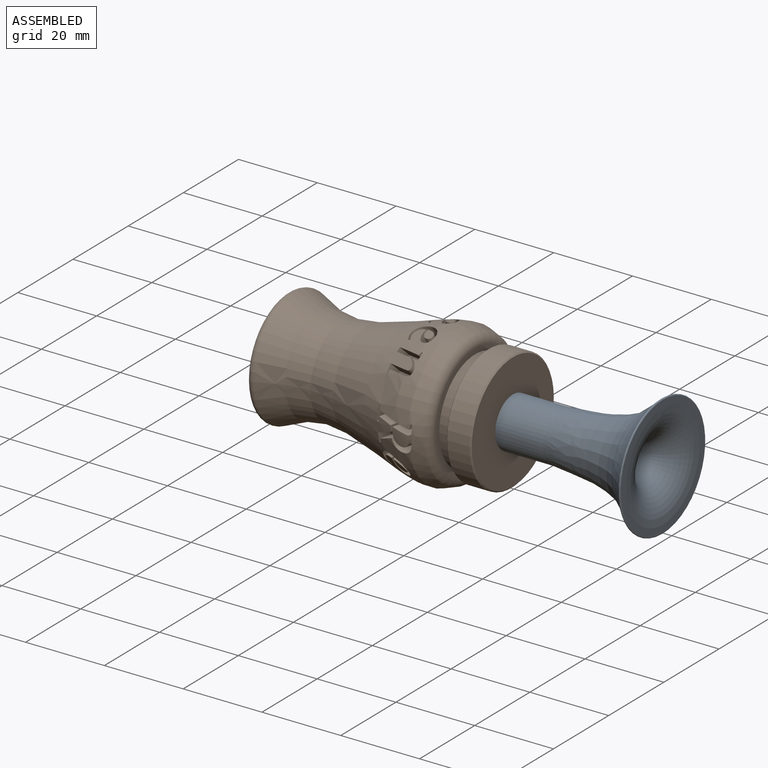
[diagram: assembled view]
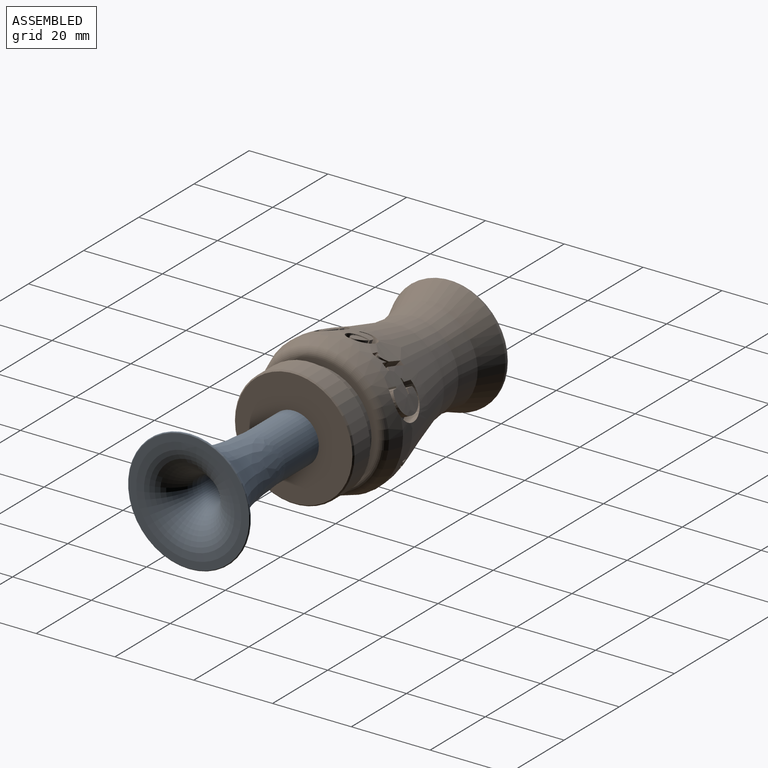
[diagram: assembled view, second angle]
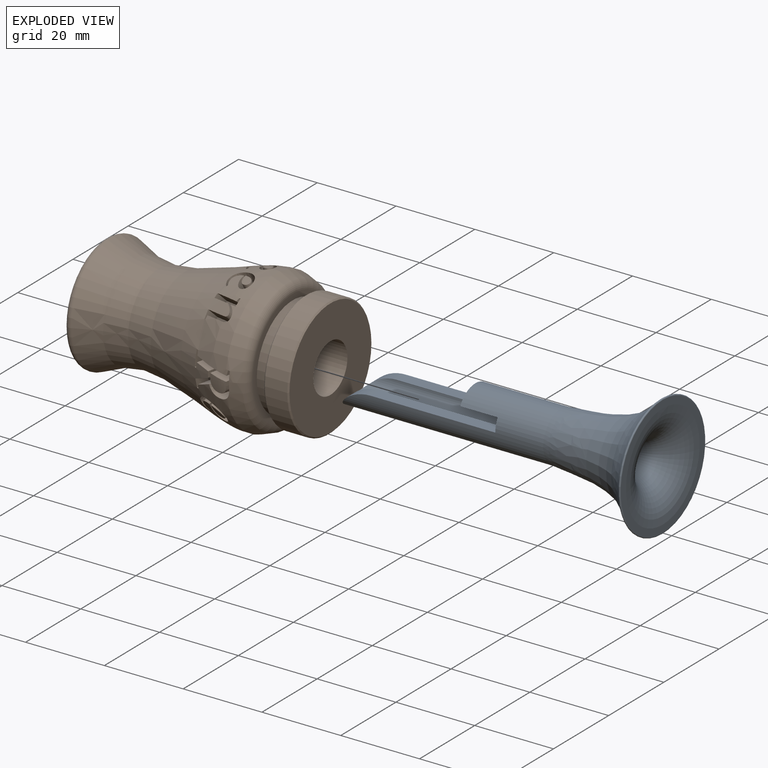
[diagram: exploded view]
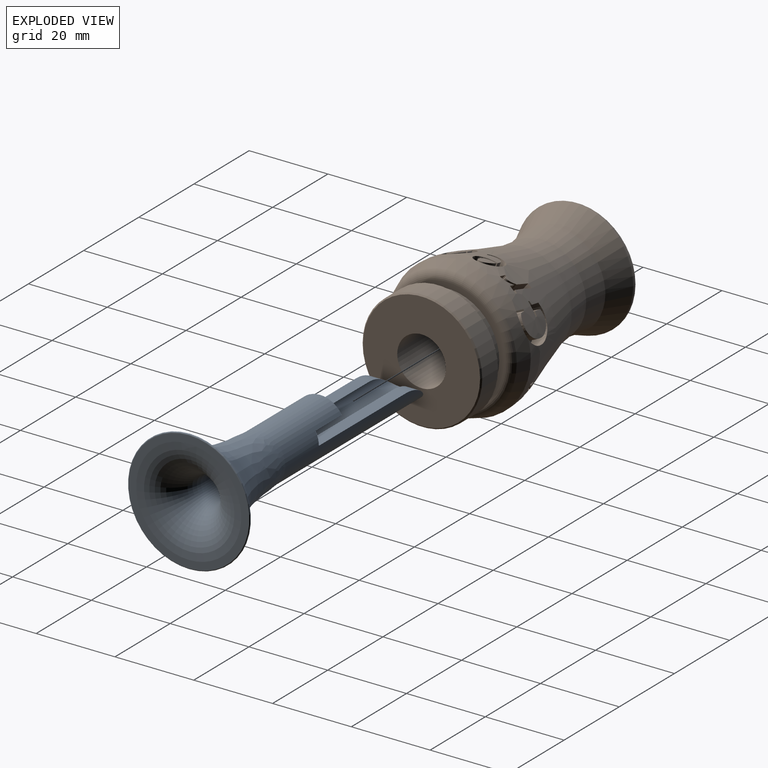
[diagram: exploded view, second angle]
ASSEMBLY  parts=2 mates=4
PART A: 15 faces, bbox 79.2x44.5x44.5 mm
  f0: cylinder r=6.35mm len=53.24mm, axis (1,0,0), area 1395.2mm2, adj f1,f6,f7,f8,f9,f10,f11,f12
  f1: plane 31.63x3.18mm, normal (0,0,1), area 100.4mm2, adj f0,f2,f6,f11
  f2: cylinder r=3.17mm len=66.95mm, axis (1,0,0), area 930.4mm2, adj f1,f3,f6,f9,f10,f11
  f3: torus R=13.33mm, axis (-1,0,0), area 688.6mm2, adj f2,f4
  f4: plane 30.53x30.53mm, normal (1,0,0), area 173.2mm2, adj f3,f5
  f5: torus R=15.26mm, axis (-1,0,0), area 58.8mm2, adj f4
  f6: plane 6.35x3.18mm, normal (-1,0,0), area 11.4mm2, adj f0,f1,f2,f8
  f7: plane 11x3.18mm, normal (-1,0,0), area 24.8mm2, adj f0,f8
  f8: plane 11x9.53mm, normal (0,0,-1), area 104.8mm2, adj f0,f6,f7,f9
  f9: plane 6.35x3.18mm, normal (-1,0,0), area 11.4mm2, adj f0,f2,f8,f10
  f10: plane 31.63x3.18mm, normal (0,0,1), area 100.4mm2, adj f0,f2,f9,f11
  f11: cylinder r=10.16mm len=12.7mm, axis (0,-1,0), area 84.9mm2, adj f0,f1,f2,f10,f12
  f12: plane 4.86x0.48mm, normal (-0.91,0,0.42), area 1.7mm2, adj f0,f11
  f13: torus R=16.51mm, axis (-1,0,0), area 56.6mm2, adj f0
  f14: revolved ~30.87x30.87mm, area 3083.4mm2
PART B: 284 faces, bbox 57.4x37.2x37.2 mm
  f0: torus R=12.64mm, axis (-1,0,0), area 39.2mm2, adj f7,f280
  f1: revolved ~44.59x35.67mm, area 3846.9mm2, adj f5,f12,f13,f14,f15,f16,f17,f18
  f2: cylinder r=6.17mm len=50.8mm, axis (-1,0,0), area 1970.9mm2, adj f4,f6
  f3: plane 27.27x27.27mm, normal (-1,0,0), area 90.6mm2, adj f4,f5
  f4: bspline ~25.05x25.05mm, area 540.3mm2, adj f2,f3
  f5: torus R=13.63mm, axis (-1,0,0), area 235.9mm2, adj f1,f3
  f6: plane 29.73x29.73mm, normal (1,0,0), area 574.4mm2, adj f2,f9
  f7: plane 29.73x29.73mm, normal (-1,0,0), area 192.1mm2, adj f0,f10
  f8: cylinder r=15.18mm len=30.36mm, axis (-1,0,0), area 545.2mm2, adj f9,f10
  f9: cone r=14.86mm half-angle=45deg, axis (-1,0,0), area 42.4mm2, adj f6,f8
  f10: cone r=15.18mm half-angle=45deg, axis (1,0,0), area 42.4mm2, adj f7,f8
  f11: bspline ~15.71x13mm, area 30.4mm2, adj f12,f13,f14,f15,f16,f17,f18,f19
  f12: extruded ~3.48x2.83mm, area 5.9mm2, adj f1,f11,f13,f35
  f13: extruded ~3.68x3.11mm, area 6.7mm2, adj f1,f11,f12,f14
  f14: plane 4.02x3.46mm, normal (0.17,-0.9,-0.39), area 10.2mm2, adj f1,f11,f13,f15
  f15: plane 3.52x1.97mm, normal (0.94,-0.08,-0.33), area 3.3mm2, adj f1,f11,f14,f16
  f16: plane 3.03x1.36mm, normal (0.16,-0.91,-0.39), area 1.3mm2, adj f1,f11,f15,f17
  f17: plane 4.9x4.34mm, normal (-0.96,-0.1,0.27), area 11.8mm2, adj f1,f11,f16,f18
  f18: plane 2.92x1.32mm, normal (-0.16,0.91,0.39), area 1.3mm2, adj f1,f11,f17,f19
  f19: plane 3.47x2.17mm, normal (0.95,0.25,-0.21), area 4mm2, adj f1,f11,f18,f20
  f20: plane 3.5x3.34mm, normal (-0.17,0.9,0.39), area 8.4mm2, adj f1,f11,f19,f21
  f21: extruded ~3.21x2.2mm, area 3.9mm2, adj f1,f11,f20,f22
  f22: extruded ~3.26x2.32mm, area 4.2mm2, adj f1,f11,f21,f23
  f23: extruded ~4.04x3.03mm, area 7.5mm2, adj f1,f11,f22,f24
  f24: extruded ~4.01x3.28mm, area 8.3mm2, adj f1,f11,f23,f25
  f25: extruded ~3.86x3.72mm, area 10mm2, adj f1,f11,f24,f26
  f26: extruded ~3.44x3mm, area 8.8mm2, adj f1,f11,f25,f27
  f27: extruded ~4.26x3.63mm, area 9mm2, adj f1,f11,f26,f28
  f28: extruded ~4.47x3.52mm, area 9.7mm2, adj f1,f11,f27,f29
  f29: plane 3.22x2.32mm, normal (-0.02,0.93,0.36), area 4.2mm2, adj f1,f11,f28,f30
  f30: plane 3.31x1.55mm, normal (0.96,0.1,-0.27), area 1.7mm2, adj f1,f11,f29,f31
  f31: plane 4.15x3.59mm, normal (0.17,-0.9,-0.39), area 7.8mm2, adj f1,f11,f30,f32
  f32: extruded ~5.38x4.57mm, area 14mm2, adj f1,f11,f31,f33
  f33: extruded ~4.94x4.58mm, area 13.2mm2, adj f1,f11,f32,f34
  f34: extruded ~3.73x3.56mm, area 10.9mm2, adj f1,f11,f33,f36
  f35: extruded ~4.69x4.05mm, area 10.9mm2, adj f1,f11,f12,f37
  f36: extruded ~4.12x3.78mm, area 11.2mm2, adj f1,f11,f34,f37
  f37: extruded ~4.5x3.86mm, area 10.6mm2, adj f1,f11,f35,f36
  f38: bspline ~13x12.18mm, area 16.6mm2, adj f39,f40,f41,f42,f43,f44,f45,f46
  f39: extruded ~2.71x2.36mm, area 5mm2, adj f38,f40,f57,f63
  f40: extruded ~2.82x2.6mm, area 4.5mm2, adj f38,f39,f41,f63
  f41: extruded ~3.08x2.62mm, area 3.6mm2, adj f38,f40,f42,f63
  f42: extruded ~3.01x2.19mm, area 2.3mm2, adj f38,f41,f58,f63
  f43: extruded ~3.23x2.05mm, area 4.1mm2, adj f1,f38,f44,f60
  f44: extruded ~3.54x2.88mm, area 5mm2, adj f1,f38,f43,f45
  f45: extruded ~3.56x3.46mm, area 6.7mm2, adj f1,f38,f44,f46
  f46: extruded ~3.18x2.99mm, area 7.3mm2, adj f1,f38,f45,f47
  f47: extruded ~3.13x2.89mm, area 7.6mm2, adj f1,f38,f46,f48
  f48: extruded ~3.52x2.8mm, area 6.7mm2, adj f1,f38,f47,f49
  f49: extruded ~3.88x3.2mm, area 6.4mm2, adj f1,f38,f48,f50
  f50: extruded ~3.25x2.91mm, area 4.7mm2, adj f1,f38,f49,f51
  f51: extruded ~3.23x3.08mm, area 5.4mm2, adj f1,f38,f50,f52
  f52: plane 2.78x1.79mm, normal (-0.55,-0.31,0.78), area 1.2mm2, adj f1,f38,f51,f53
  f53: extruded ~3.08x2.68mm, area 3.7mm2, adj f1,f38,f52,f54
  f54: extruded ~3.18x2.73mm, area 4mm2, adj f1,f38,f53,f55
  f55: extruded ~3.36x2.6mm, area 4.1mm2, adj f1,f38,f54,f56
  f56: extruded ~3.17x2.29mm, area 4.8mm2, adj f1,f38,f55,f61
  f57: extruded ~3.75x3.7mm, area 7.8mm2, adj f38,f39,f59,f63
  f58: extruded ~2.92x1.82mm, area 2.3mm2, adj f38,f42,f59,f63
  f59: extruded ~2.92x2.73mm, area 5.5mm2, adj f38,f57,f58,f63
  f60: extruded ~3.17x3.15mm, area 7.1mm2, adj f1,f38,f43,f62
  f61: plane 2.67x1.78mm, normal (0.05,-0.56,0.83), area 1.7mm2, adj f1,f38,f56,f62
  f62: extruded ~4.58x4.17mm, area 11mm2, adj f1,f38,f60,f61
  f63: revolved ~3.03x2.95mm, area 5.6mm2, adj f39,f40,f41,f42,f57,f58,f59
  f64: bspline ~13x12.18mm, area 12mm2, adj f65,f66,f67,f68,f69,f70,f71,f72
  f65: extruded ~3.63x2.81mm, area 4.7mm2, adj f1,f64,f66,f77
  f66: extruded ~3.73x2.55mm, area 5.7mm2, adj f1,f64,f65,f67
  f67: plane 2.97x2.53mm, normal (0.14,-0.86,0.48), area 5.1mm2, adj f1,f64,f66,f68
  f68: plane 3.9x3.29mm, normal (-0.96,0.15,0.25), area 6.6mm2, adj f1,f64,f67,f69
  f69: plane 2.74x1.67mm, normal (-0.17,0.87,-0.47), area 1.1mm2, adj f1,f64,f68,f70
  f70: plane 3.18x2.33mm, normal (0.94,0.03,-0.35), area 2.9mm2, adj f1,f64,f69,f71
  f71: plane 7.23x4.77mm, normal (-0.17,0.87,-0.47), area 20.8mm2, adj f1,f64,f70,f72
  f72: plane 3.41x2.57mm, normal (0.96,-0.15,-0.25), area 3.9mm2, adj f1,f64,f71,f73
  f73: plane 5.43x4.22mm, normal (0.16,-0.87,0.47), area 14.6mm2, adj f1,f64,f72,f74
  f74: extruded ~3.58x2.45mm, area 5.3mm2, adj f1,f64,f73,f75
  f75: extruded ~3.48x2.65mm, area 4.2mm2, adj f1,f64,f74,f76
  f76: plane 2.65x1.96mm, normal (0.27,0.77,-0.57), area 3.1mm2, adj f1,f64,f75,f78
  f77: extruded ~3.02x2.18mm, area 1.9mm2, adj f1,f64,f65,f79
  f78: plane 2.76x1.9mm, normal (0.96,-0.15,-0.25), area 1mm2, adj f1,f64,f76,f79
  f79: plane 3.05x2.81mm, normal (0.17,-0.87,0.47), area 6mm2, adj f1,f64,f77,f78
  f80: bspline ~13x12.18mm, area 16.6mm2, adj f81,f82,f83,f84,f85,f86,f87,f88
  f81: extruded ~2.68x2.39mm, area 5mm2, adj f80,f82,f99,f105
  f82: extruded ~2.81x2.64mm, area 4.5mm2, adj f80,f81,f83,f105
  f83: extruded ~3.07x2.65mm, area 3.6mm2, adj f80,f82,f84,f105
  f84: extruded ~2.99x2.22mm, area 2.3mm2, adj f80,f83,f100,f105
  f85: extruded ~3.22x2.08mm, area 4.1mm2, adj f1,f80,f86,f102
  f86: extruded ~3.53x2.9mm, area 5mm2, adj f1,f80,f85,f87
  f87: extruded ~3.56x3.48mm, area 6.7mm2, adj f1,f80,f86,f88
  f88: extruded ~3.21x2.98mm, area 7.3mm2, adj f1,f80,f87,f89
  f89: extruded ~3.13x2.86mm, area 7.6mm2, adj f1,f80,f88,f90
  f90: extruded ~3.5x2.8mm, area 6.7mm2, adj f1,f80,f89,f91
  f91: extruded ~3.88x3.22mm, area 6.4mm2, adj f1,f80,f90,f92
  f92: extruded ~3.25x2.93mm, area 4.7mm2, adj f1,f80,f91,f93
  f93: extruded ~3.23x3.11mm, area 5.4mm2, adj f1,f80,f92,f94
  f94: plane 2.76x1.83mm, normal (-0.55,0.77,0.32), area 1.2mm2, adj f1,f80,f93,f95
  f95: extruded ~3.07x2.7mm, area 3.7mm2, adj f1,f80,f94,f96
  f96: extruded ~3.17x2.76mm, area 4mm2, adj f1,f80,f95,f97
  f97: extruded ~3.35x2.63mm, area 4.1mm2, adj f1,f80,f96,f98
  f98: extruded ~3.15x2.29mm, area 4.8mm2, adj f1,f80,f97,f103
  f99: extruded ~3.77x3.71mm, area 7.8mm2, adj f80,f81,f101,f105
  f100: extruded ~2.9x1.86mm, area 2.3mm2, adj f80,f84,f101,f105
  f101: extruded ~2.91x2.76mm, area 5.5mm2, adj f80,f99,f100,f105
  f102: extruded ~3.19x3.16mm, area 7.1mm2, adj f1,f80,f85,f104
  f103: plane 2.64x1.82mm, normal (0.05,0.82,0.57), area 1.7mm2, adj f1,f80,f98,f104
  f104: extruded ~4.59x4.18mm, area 11mm2, adj f1,f80,f102,f103
  f105: revolved ~3.01x2.95mm, area 5.6mm2, adj f81,f82,f83,f84,f99,f100,f101
  f106: bspline ~10.22x10mm, area 36.7mm2, adj f107,f108,f109,f110,f111,f112,f113,f114
  f107: plane 3.08x1.31mm, normal (-0.96,0.02,-0.29), area 3.7mm2, adj f106,f108,f126,f132
  f108: plane 5.59x3.8mm, normal (0.17,0.98,0.1), area 14.1mm2, adj f106,f107,f109,f132
  f109: plane 3.54x1.28mm, normal (0.96,-0.02,0.29), area 4mm2, adj f106,f108,f127,f132
  f110: plane 3.09x1.71mm, normal (0.96,-0.02,0.29), area 4.9mm2, adj f1,f106,f111,f129
  f111: plane 5.23x4.53mm, normal (0.37,-0.93,0.06), area 14.9mm2, adj f1,f106,f110,f112
  f112: plane 3.65x2.43mm, normal (0.96,-0.02,0.29), area 7.3mm2, adj f1,f106,f111,f113
  f113: plane 3.24x1.33mm, normal (0.18,0.98,0.1), area 1.3mm2, adj f1,f106,f112,f114
  f114: plane 3.48x1.23mm, normal (-0.94,0.19,-0.28), area 3.6mm2, adj f1,f106,f113,f115
  f115: plane 4.82x4.54mm, normal (-0.37,0.93,-0.07), area 13.7mm2, adj f1,f106,f114,f116
  f116: extruded ~4.69x4.01mm, area 14mm2, adj f1,f106,f115,f117
  f117: extruded ~4.55x2.91mm, area 7.3mm2, adj f1,f106,f116,f118
  f118: extruded ~4.25x2.64mm, area 10.2mm2, adj f1,f106,f117,f119
  f119: plane 4.46x4.26mm, normal (-0.96,0.02,-0.29), area 16.3mm2, adj f1,f106,f118,f120
  f120: plane 4.19x1.68mm, normal (-0.18,-0.98,-0.11), area 1.7mm2, adj f1,f106,f119,f121
  f121: plane 4.02x1.46mm, normal (0.95,-0.17,0.28), area 4.8mm2, adj f1,f106,f120,f122
  f122: plane 9.63x4.83mm, normal (-0.17,-0.98,-0.1), area 29.1mm2, adj f1,f106,f121,f123
  f123: plane 3.51x1.38mm, normal (-0.94,-0.15,-0.29), area 4mm2, adj f1,f106,f122,f124
  f124: plane 3.35x1.34mm, normal (-0.18,-0.98,-0.1), area 1.3mm2, adj f1,f106,f123,f125
  f125: plane 4.21x3.8mm, normal (0.96,-0.02,0.29), area 12.7mm2, adj f1,f106,f124,f130
  f126: extruded ~3.3x2.23mm, area 7mm2, adj f106,f107,f128,f132
  f127: extruded ~4.44x2.85mm, area 10.9mm2, adj f106,f109,f128,f132
  f128: extruded ~4x2.79mm, area 6.5mm2, adj f106,f126,f127,f132
  f129: plane 4.62x4.19mm, normal (0.17,0.98,0.1), area 12.1mm2, adj f1,f106,f110,f131
  f130: plane 3.16x1.3mm, normal (0.18,0.98,0.11), area 1.3mm2, adj f1,f106,f125,f131
  f131: plane 3.09x1.49mm, normal (-0.95,0.16,-0.28), area 4.2mm2, adj f1,f106,f129,f130
  f132: revolved ~4.27x3.96mm, area 13.3mm2, adj f107,f108,f109,f126,f127,f128
  f133: bspline ~15.07x13.03mm, area 26.5mm2, adj f134,f135,f136,f137,f138,f139,f140,f141
  f134: plane 5.3x4.35mm, normal (0.17,-0.1,0.98), area 14.2mm2, adj f133,f135,f157,f163
  f135: extruded ~3.27x1.64mm, area 3.8mm2, adj f133,f134,f136,f163
  f136: extruded ~3.16x1.22mm, area 3.1mm2, adj f133,f135,f137,f163
  f137: extruded ~3.25x1.37mm, area 3.3mm2, adj f133,f136,f138,f163
  f138: extruded ~3.54x2.17mm, area 4.3mm2, adj f133,f137,f139,f163
  f139: extruded ~3.74x2.85mm, area 6.4mm2, adj f133,f138,f158,f163
  f140: extruded ~3.19x1.06mm, area 1.8mm2, adj f1,f133,f141,f160
  f141: extruded ~3.16x0.99mm, area 2.2mm2, adj f1,f133,f140,f142
  f142: extruded ~3.14x2.2mm, area 6.9mm2, adj f1,f133,f141,f143
  f143: extruded ~3.68x2.65mm, area 7.4mm2, adj f1,f133,f142,f144
  f144: extruded ~3.97x3.3mm, area 8mm2, adj f1,f133,f143,f145
  f145: extruded ~3.78x2.7mm, area 6.2mm2, adj f1,f133,f144,f146
  f146: extruded ~3.41x1.58mm, area 5.3mm2, adj f1,f133,f145,f147
  f147: extruded ~3.57x2.48mm, area 8.8mm2, adj f1,f133,f146,f148
  f148: plane 3.25x2.07mm, normal (0.12,-0.08,0.99), area 3.6mm2, adj f1,f133,f147,f149
  f149: plane 3.3x2.12mm, normal (-0.96,0.29,0.01), area 6.3mm2, adj f1,f133,f148,f150
  f150: plane 3.19x1.29mm, normal (-0.17,0.1,-0.98), area 1.1mm2, adj f1,f133,f149,f151
  f151: plane 3.2x1.18mm, normal (0.93,-0.27,-0.25), area 2.5mm2, adj f1,f133,f150,f152
  f152: plane 9.91x6.01mm, normal (-0.17,0.1,-0.98), area 29.9mm2, adj f1,f133,f151,f153
  f153: plane 3.48x1.06mm, normal (-0.94,0.29,-0.18), area 3mm2, adj f1,f133,f152,f154
  f154: plane 3.35x1.3mm, normal (-0.16,0.09,-0.98), area 1.2mm2, adj f1,f133,f153,f155
  f155: plane 3.8x3.52mm, normal (0.96,-0.29,-0.01), area 10.7mm2, adj f1,f133,f154,f156
  f156: plane 3.16x1.26mm, normal (0.16,-0.09,0.98), area 1.1mm2, adj f1,f133,f155,f161
  f157: extruded ~3.33x1.37mm, area 4.2mm2, adj f133,f134,f159,f163
  f158: extruded ~3.51x2.39mm, area 5.7mm2, adj f133,f139,f159,f163
  f159: extruded ~3.15x1.47mm, area 4.6mm2, adj f133,f157,f158,f163
  f160: plane 3.28x1.56mm, normal (0.12,-0.08,0.99), area 2.1mm2, adj f1,f133,f140,f162
  f161: plane 3.14x1.33mm, normal (-0.95,0.28,0.16), area 3.8mm2, adj f1,f133,f156,f162
  f162: plane 3.76x2.88mm, normal (0.16,-0.1,0.98), area 6.7mm2, adj f1,f133,f160,f161
  f163: revolved ~5.57x4.05mm, area 15.6mm2, adj f134,f135,f136,f137,f138,f139,f157,f158
  f164: bspline ~13x12.18mm, area 20.6mm2, adj f165,f166,f167,f168,f169,f170,f171,f172
  f165: plane 5.39x4.05mm, normal (-0.17,-0.43,-0.89), area 14.2mm2, adj f164,f166,f182,f188
  f166: extruded ~3.8x2.91mm, area 6.8mm2, adj f164,f165,f167,f188
  f167: extruded ~3.05x2.35mm, area 3.3mm2, adj f164,f166,f168,f188
  f168: extruded ~2.91x2.15mm, area 4.2mm2, adj f164,f167,f169,f188
  f169: extruded ~3.4x2.82mm, area 6.4mm2, adj f164,f168,f170,f188
  f170: extruded ~3.6x2.38mm, area 5.8mm2, adj f164,f169,f183,f188
  f171: plane 7.38x4.41mm, normal (0.17,0.43,0.89), area 21.3mm2, adj f1,f164,f172,f185
  f172: plane 2.89x1.9mm, normal (-0.96,0.25,-0.14), area 1.3mm2, adj f1,f164,f171,f173
  f173: plane 2.88x1.82mm, normal (-0.76,-0.09,-0.64), area 1.4mm2, adj f1,f164,f172,f174
  f174: extruded ~3.53x3.06mm, area 5.6mm2, adj f1,f164,f173,f175
  f175: extruded ~3.92x3.23mm, area 7mm2, adj f1,f164,f174,f176
  f176: extruded ~3.89x2.62mm, area 7.5mm2, adj f1,f164,f175,f177
  f177: extruded ~3.61x3.25mm, area 8.1mm2, adj f1,f164,f176,f178
  f178: extruded ~3.05x2.7mm, area 6.2mm2, adj f1,f164,f177,f179
  f179: extruded ~3.39x2.93mm, area 5.2mm2, adj f1,f164,f178,f180
  f180: extruded ~4.14x3.3mm, area 8.5mm2, adj f1,f164,f179,f181
  f181: plane 3.05x2.03mm, normal (-0.18,-0.43,-0.89), area 3.7mm2, adj f1,f164,f180,f186
  f182: extruded ~2.89x2mm, area 1.9mm2, adj f164,f165,f184,f188
  f183: extruded ~3.54x2.62mm, area 4.8mm2, adj f164,f170,f184,f188
  f184: extruded ~2.99x2.05mm, area 2mm2, adj f164,f182,f183,f188
  f185: plane 2.95x2.3mm, normal (-0.93,0.35,0.05), area 2.7mm2, adj f1,f164,f171,f187
  f186: plane 3.54x3.45mm, normal (0.96,-0.25,0.14), area 6.7mm2, adj f1,f164,f181,f187
  f187: plane 2.81x1.5mm, normal (0.17,0.43,0.89), area 1.1mm2, adj f1,f164,f185,f186
  f188: revolved ~5.58x3.93mm, area 15.1mm2, adj f165,f166,f167,f168,f169,f170,f182,f183
  f189: bspline ~12.18x10.89mm, area 16.6mm2, adj f190,f191,f192,f193,f194,f195,f196,f197
  f190: extruded ~3.31x2.36mm, area 5mm2, adj f189,f191,f208,f214
  f191: extruded ~3.16x2.03mm, area 4.5mm2, adj f189,f190,f192,f214
  f192: extruded ~3.18x1.79mm, area 3.6mm2, adj f189,f191,f193,f214
  f193: extruded ~3.23x1.39mm, area 2.3mm2, adj f189,f192,f209,f214
  f194: extruded ~3.53x2.01mm, area 4.1mm2, adj f1,f189,f195,f211
  f195: extruded ~3.54x2.17mm, area 5mm2, adj f1,f189,f194,f196
  f196: extruded ~3.39x2.71mm, area 6.7mm2, adj f1,f189,f195,f197
  f197: extruded ~3.16x2.59mm, area 7.3mm2, adj f1,f189,f196,f198
  f198: extruded ~3.53x3.13mm, area 7.6mm2, adj f1,f189,f197,f199
  f199: extruded ~3.82x2.8mm, area 6.7mm2, adj f1,f189,f198,f200
  f200: extruded ~3.79x2.54mm, area 6.4mm2, adj f1,f189,f199,f201
  f201: extruded ~3.22x2.17mm, area 4.7mm2, adj f1,f189,f200,f202
  f202: extruded ~3.2x2.25mm, area 5.4mm2, adj f1,f189,f201,f203
  f203: plane 3.13x1.22mm, normal (-0.55,0.05,-0.84), area 1.2mm2, adj f1,f189,f202,f204
  f204: extruded ~3.17x1.84mm, area 3.7mm2, adj f1,f189,f203,f205
  f205: extruded ~3.21x1.97mm, area 4mm2, adj f1,f189,f204,f206
  f206: extruded ~3.44x1.88mm, area 4.1mm2, adj f1,f189,f205,f207
  f207: extruded ~3.52x2.29mm, area 4.8mm2, adj f1,f189,f206,f212
  f208: extruded ~3.4x3.08mm, area 7.8mm2, adj f189,f190,f210,f214
  f209: extruded ~3.3x1.6mm, area 2.3mm2, adj f189,f193,f210,f214
  f210: extruded ~3.32x2.32mm, area 5.5mm2, adj f189,f208,f209,f214
  f211: extruded ~3.47x2.66mm, area 7.1mm2, adj f1,f189,f194,f213
  f212: plane 3.09x1.45mm, normal (0.05,0.27,-0.96), area 1.7mm2, adj f1,f189,f207,f213
  f213: extruded ~4.03x3.56mm, area 11mm2, adj f1,f189,f211,f212
  f214: revolved ~3.26x2.95mm, area 5.6mm2, adj f190,f191,f192,f193,f208,f209,f210
  f215: bspline ~12.18x9.6mm, area 19.9mm2, adj f216,f217,f218,f219,f220,f221,f222,f223
  f216: extruded ~2.54x2.48mm, area 3.9mm2, adj f1,f215,f217,f235
  f217: plane 5.2x3.44mm, normal (-0.17,-0.69,0.7), area 13.8mm2, adj f1,f215,f216,f218
  f218: plane 3.98x3.55mm, normal (0.96,0.22,0.19), area 7.1mm2, adj f1,f215,f217,f219
  f219: plane 2.34x2.16mm, normal (0.17,0.69,-0.7), area 1.1mm2, adj f1,f215,f218,f220
  f220: plane 3.1x2.64mm, normal (-0.94,-0.09,-0.32), area 3.1mm2, adj f1,f215,f219,f221
  f221: extruded ~5.54x3.76mm, area 15.4mm2, adj f1,f215,f220,f222
  f222: extruded ~2.4x2.17mm, area 1mm2, adj f1,f215,f221,f223
  f223: extruded ~2.91x2.26mm, area 4mm2, adj f1,f215,f222,f224
  f224: extruded ~3.2x2.86mm, area 4mm2, adj f1,f215,f223,f225
  f225: extruded ~3.2x3.2mm, area 4.5mm2, adj f1,f215,f224,f226
  f226: extruded ~3.31x2.98mm, area 5.6mm2, adj f1,f215,f225,f227
  f227: plane 2.37x2.37mm, normal (0.13,0.69,-0.71), area 4.6mm2, adj f1,f215,f226,f228
  f228: plane 3.8x3.53mm, normal (-0.96,-0.22,-0.19), area 6.7mm2, adj f1,f215,f227,f229
  f229: plane 2.36x2.17mm, normal (-0.17,-0.69,0.7), area 1.1mm2, adj f1,f215,f228,f230
  f230: plane 2.83x2.81mm, normal (0.94,0.07,0.34), area 2.9mm2, adj f1,f215,f229,f231
  f231: plane 7.25x4.19mm, normal (-0.17,-0.69,0.7), area 21mm2, adj f1,f215,f230,f232
  f232: plane 3.12x2.97mm, normal (0.96,0.22,0.19), area 3.9mm2, adj f1,f215,f231,f233
  f233: plane 5.54x3.67mm, normal (0.16,0.69,-0.7), area 15mm2, adj f1,f215,f232,f234
  f234: extruded ~3.09x2.79mm, area 5mm2, adj f1,f215,f233,f236
  f235: extruded ~2.57x2.13mm, area 1.8mm2, adj f1,f215,f216,f237
  f236: extruded ~3.07x3.05mm, area 4.1mm2, adj f1,f215,f234,f237
  f237: extruded ~2.72x2.43mm, area 2mm2, adj f1,f215,f235,f236
  f238: bspline ~12.18x9.6mm, area 12mm2, adj f239,f240,f241,f242,f243,f244,f245,f246
  f239: extruded ~3.56x2.98mm, area 4.7mm2, adj f1,f238,f240,f251
  f240: extruded ~3.64x2.7mm, area 5.7mm2, adj f1,f238,f239,f241
  f241: plane 2.82x2.53mm, normal (0.14,-0.56,-0.82), area 5.1mm2, adj f1,f238,f240,f242
  f242: plane 3.89x3.41mm, normal (-0.96,-0.23,0.17), area 6.6mm2, adj f1,f238,f241,f243
  f243: plane 2.58x1.89mm, normal (-0.17,0.55,0.82), area 1.1mm2, adj f1,f238,f242,f244
  f244: plane 3.09x2.51mm, normal (0.94,0.35,0), area 2.9mm2, adj f1,f238,f243,f245
  f245: plane 7.23x4.62mm, normal (-0.17,0.55,0.82), area 20.8mm2, adj f1,f238,f244,f246
  f246: plane 3.34x2.72mm, normal (0.96,0.23,-0.17), area 3.9mm2, adj f1,f238,f245,f247
  f247: plane 5.43x4.07mm, normal (0.16,-0.55,-0.82), area 14.6mm2, adj f1,f238,f246,f248
  f248: extruded ~3.49x2.6mm, area 5.3mm2, adj f1,f238,f247,f249
  f249: extruded ~3.4x2.81mm, area 4.2mm2, adj f1,f238,f248,f250
  f250: plane 2.5x2.19mm, normal (0.27,0.64,0.72), area 3.1mm2, adj f1,f238,f249,f252
  f251: extruded ~2.9x2.39mm, area 1.9mm2, adj f1,f238,f239,f253
  f252: plane 2.63x2.12mm, normal (0.96,0.23,-0.17), area 1mm2, adj f1,f238,f250,f253
  f253: plane 2.9x2.81mm, normal (0.17,-0.55,-0.82), area 6mm2, adj f1,f238,f251,f252
  f254: bspline ~12.18x10.89mm, area 16.6mm2, adj f255,f256,f257,f258,f259,f260,f261,f262
  f255: extruded ~3.58x2.36mm, area 5mm2, adj f254,f256,f273,f279
  f256: extruded ~3.58x2.03mm, area 4.5mm2, adj f254,f255,f257,f279
  f257: extruded ~3.4x1.58mm, area 3.6mm2, adj f254,f256,f258,f279
  f258: extruded ~3.09x1.26mm, area 2.3mm2, adj f254,f257,f274,f279
  f259: extruded ~3.33x2.01mm, area 4.1mm2, adj f1,f254,f260,f276
  f260: extruded ~3.27x2.07mm, area 5mm2, adj f1,f254,f259,f261
  f261: extruded ~3.7x2.48mm, area 6.7mm2, adj f1,f254,f260,f262
  f262: extruded ~3.84x2.59mm, area 7.3mm2, adj f1,f254,f261,f263
  f263: extruded ~3.81x3.13mm, area 7.6mm2, adj f1,f254,f262,f264
  f264: extruded ~3.58x2.8mm, area 6.7mm2, adj f1,f254,f263,f265
  f265: extruded ~3.37x2.48mm, area 6.4mm2, adj f1,f254,f264,f266
  f266: extruded ~3.35x1.98mm, area 4.7mm2, adj f1,f254,f265,f267
  f267: extruded ~3.66x1.98mm, area 5.4mm2, adj f1,f254,f266,f268
  f268: plane 3.07x1.22mm, normal (-0.55,-0.33,-0.77), area 1.2mm2, adj f1,f254,f267,f269
  f269: extruded ~3.44x1.62mm, area 3.7mm2, adj f1,f254,f268,f270
  f270: extruded ~3.31x1.79mm, area 4mm2, adj f1,f254,f269,f271
  f271: extruded ~3.16x1.79mm, area 4.1mm2, adj f1,f254,f270,f272
  f272: extruded ~3.38x2.29mm, area 4.8mm2, adj f1,f254,f271,f277
  f273: extruded ~3.7x2.85mm, area 7.8mm2, adj f254,f255,f275,f279
  f274: extruded ~3.24x1.6mm, area 2.3mm2, adj f254,f258,f275,f279
  f275: extruded ~3.75x2.32mm, area 5.5mm2, adj f254,f273,f274,f279
  f276: extruded ~4.04x2.66mm, area 7.1mm2, adj f1,f254,f259,f278
  f277: plane 3.15x1.45mm, normal (0.05,-0.18,-0.98), area 1.7mm2, adj f1,f254,f272,f278
  f278: extruded ~3.9x3.8mm, area 11mm2, adj f1,f254,f276,f277
  f279: revolved ~3.27x2.95mm, area 5.6mm2, adj f255,f256,f257,f258,f273,f274,f275
  f280: plane 26.25x26.25mm, normal (-1,0,0), area 8.3mm2, adj f0,f282
  f281: plane 29.05x29.05mm, normal (1,0,0), area 130.2mm2, adj f282,f283
  f282: cylinder r=13.02mm len=26.04mm, axis (-1,0,0), area 259.8mm2, adj f280,f281
  f283: torus R=14.53mm, axis (-1,0,0), area 248.2mm2, adj f1,f281
PLACE A t=(124.75,12.73,18.24)mm
PLACE B rot(axis=(1,0,0),90deg) t=(67.6,12.73,18.24)mm
MATE slider A.f0 <-> B.f0  axis (-1,0,0) through (124.75,12.73,18.24)mm
MATE slider A.f0 <-> B.f0  axis (-1,0,0) through (124.75,12.73,18.24)mm
MATE slider B.f0 <-> A.f0  axis (1,0,0) through (124.75,12.73,18.24)mm
MATE slider B.f0 <-> A.f0  axis (1,0,0) through (124.75,12.73,18.24)mm
